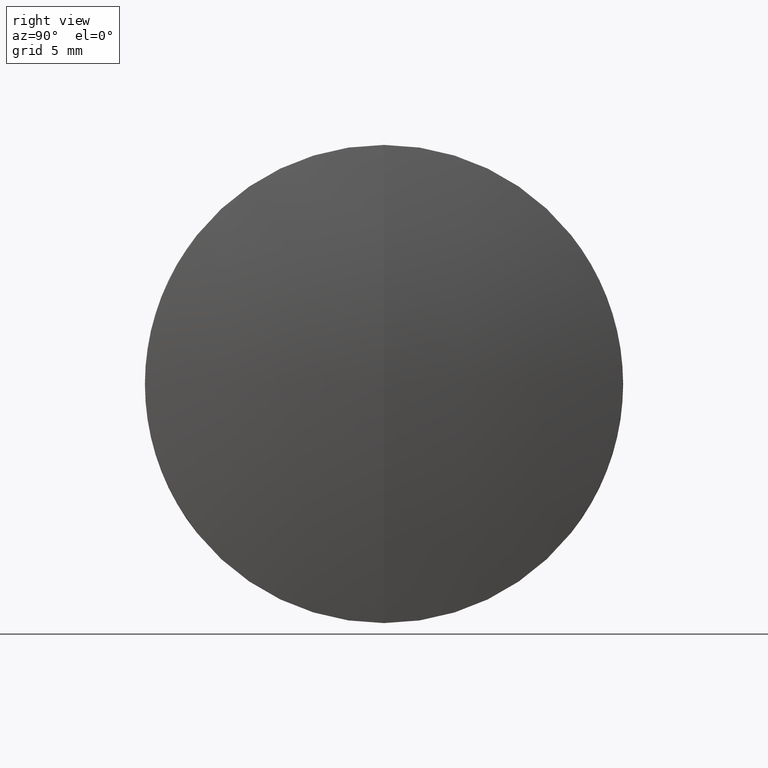
[diagram: clean part render]
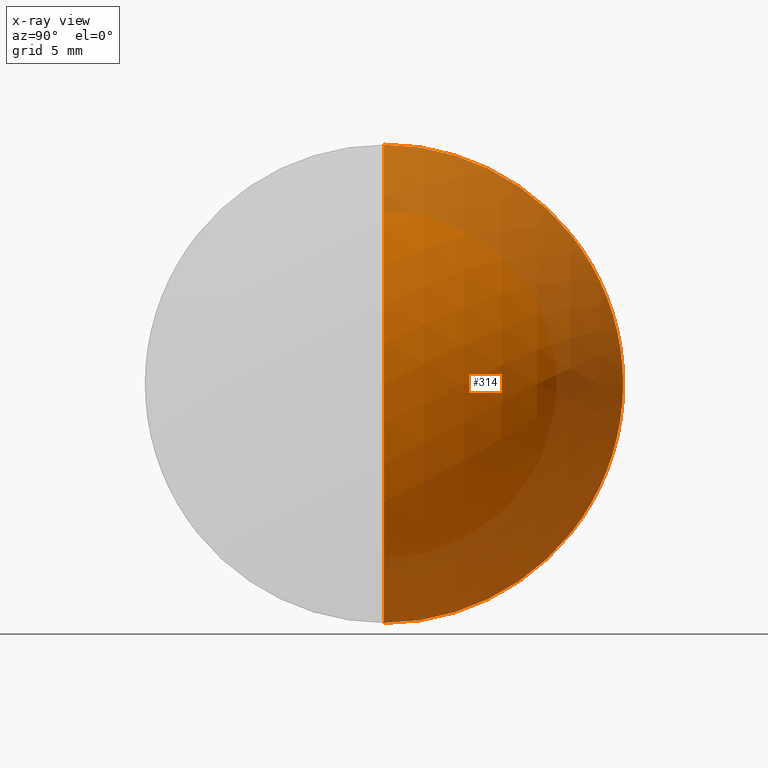
[diagram: x-ray — body ghosted, one internal face saturated and labeled with its STEP entity id]
A machine part, right view, then the same camera in x-ray: the body is ghosted and one INTERNAL B-rep face — a face not visible from any outside direction — is saturated and labeled: STEP entity #314.
In plain terms, the highlighted spherical surface has radius 15.24 mm.
Its self-contained STEP definition (entity closure, byte-faithful):
#1 = CARTESIAN_POINT ( 'NONE',  ( 16.75446555327505400, 1.555301434917138400E-015, -12.69999999999999900 ) ) ;
#9 = CARTESIAN_POINT ( 'NONE',  ( 16.75446555327505400, 0.0000000000000000000, 0.0000000000000000000 ) ) ;
#14 = CARTESIAN_POINT ( 'NONE',  ( 16.75446555327505400, 0.0000000000000000000, 12.69999999999999900 ) ) ;
#21 = CARTESIAN_POINT ( 'NONE',  ( 8.330238585772336900, 0.0000000000000000000, 0.0000000000000000000 ) ) ;
#27 = DIRECTION ( 'NONE',  ( 0.0000000000000000000, -1.224646799147353200E-016, 1.000000000000000000 ) ) ;
#47 = DIRECTION ( 'NONE',  ( -0.0000000000000000000, 1.000000000000000000, 1.224646799147353200E-016 ) ) ;
#49 = DIRECTION ( 'NONE',  ( 0.0000000000000000000, 0.0000000000000000000, -1.000000000000000000 ) ) ;
#52 = DIRECTION ( 'NONE',  ( 0.0000000000000000000, 1.000000000000000000, 0.0000000000000000000 ) ) ;
#54 = EDGE_CURVE ( 'NONE', #175, #178, #88, .T. ) ;
#73 = DIRECTION ( 'NONE',  ( 0.0000000000000000000, -1.000000000000000000, 0.0000000000000000000 ) ) ;
#88 = CIRCLE ( 'NONE', #160, 15.24000000000000000 ) ;
#104 = VERTEX_POINT ( 'NONE', #14 ) ;
#124 = EDGE_LOOP ( 'NONE', ( #271, #322, #166 ) ) ;
#130 = EDGE_CURVE ( 'NONE', #175, #104, #287, .T. ) ;
#137 = AXIS2_PLACEMENT_3D ( 'NONE', #21, #52, #338 ) ;
#140 = CARTESIAN_POINT ( 'NONE',  ( 23.57023858577233700, 0.0000000000000000000, 9.331808609502831000E-016 ) ) ;
#160 = AXIS2_PLACEMENT_3D ( 'NONE', #209, #47, #27 ) ;
#166 = ORIENTED_EDGE ( 'NONE', *, *, #346, .F. ) ;
#174 = DIRECTION ( 'NONE',  ( -1.000000000000000000, -0.0000000000000000000, -0.0000000000000000000 ) ) ;
#175 = VERTEX_POINT ( 'NONE', #140 ) ;
#178 = VERTEX_POINT ( 'NONE', #1 ) ;
#186 = SPHERICAL_SURFACE ( 'NONE', #137, 15.24000000000000000 ) ;
#195 = AXIS2_PLACEMENT_3D ( 'NONE', #330, #73, #49 ) ;
#198 = FACE_OUTER_BOUND ( 'NONE', #124, .T. ) ;
#209 = CARTESIAN_POINT ( 'NONE',  ( 8.330238585772336900, 0.0000000000000000000, 0.0000000000000000000 ) ) ;
#271 = ORIENTED_EDGE ( 'NONE', *, *, #130, .F. ) ;
#272 = CIRCLE ( 'NONE', #290, 12.69999999999999900 ) ;
#287 = CIRCLE ( 'NONE', #195, 15.24000000000000000 ) ;
#290 = AXIS2_PLACEMENT_3D ( 'NONE', #9, #174, #336 ) ;
#314 = ADVANCED_FACE ( 'NONE', ( #198 ), #186, .T. ) ;
#322 = ORIENTED_EDGE ( 'NONE', *, *, #54, .T. ) ;
#330 = CARTESIAN_POINT ( 'NONE',  ( 8.330238585772336900, 0.0000000000000000000, 0.0000000000000000000 ) ) ;
#336 = DIRECTION ( 'NONE',  ( 0.0000000000000000000, 0.0000000000000000000, 1.000000000000000000 ) ) ;
#338 = DIRECTION ( 'NONE',  ( 0.0000000000000000000, 0.0000000000000000000, 1.000000000000000000 ) ) ;
#346 = EDGE_CURVE ( 'NONE', #104, #178, #272, .T. ) ;